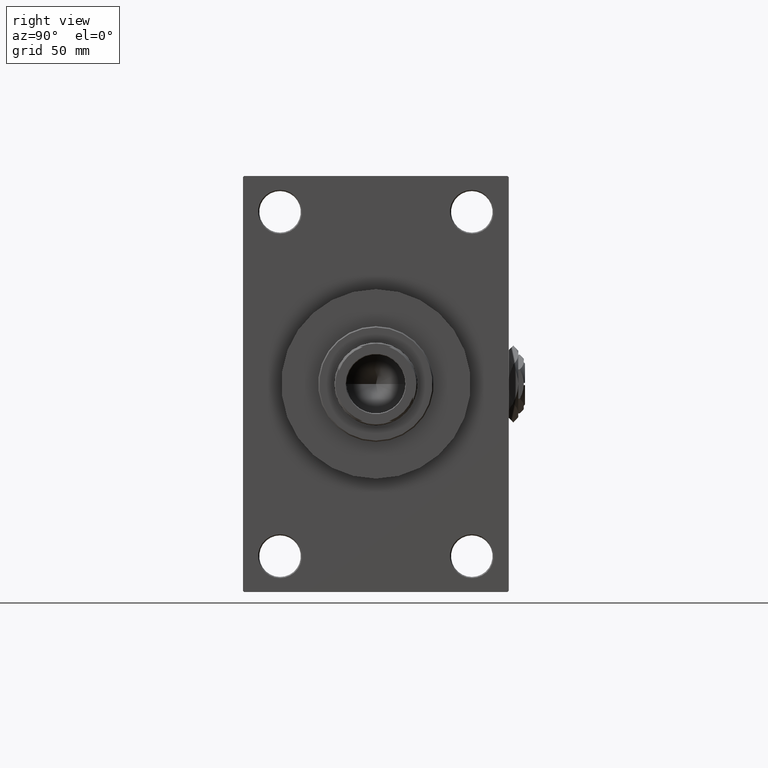
[diagram: clean part render]
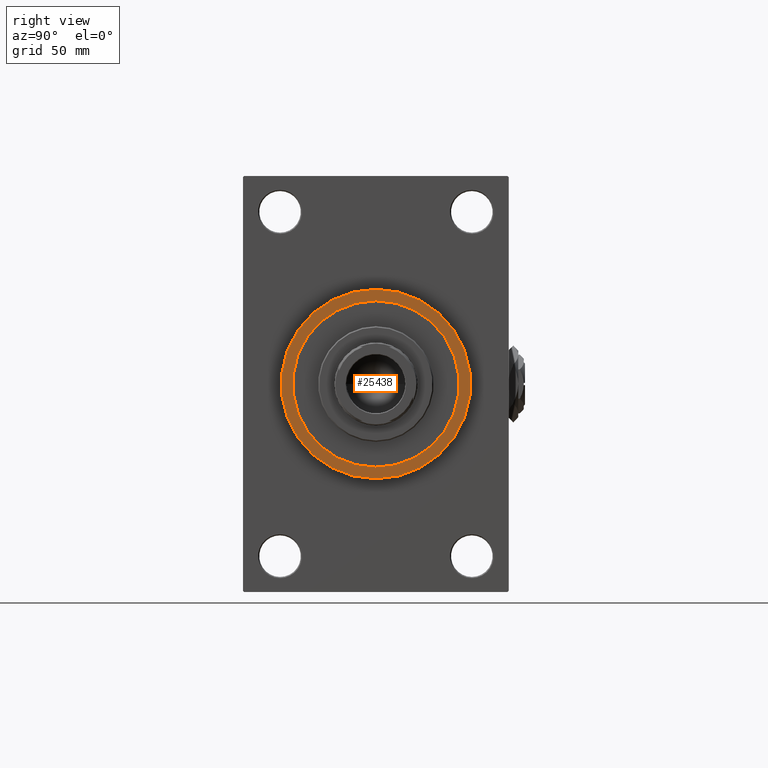
[diagram: same view with one face highlighted and labeled with its STEP entity id]
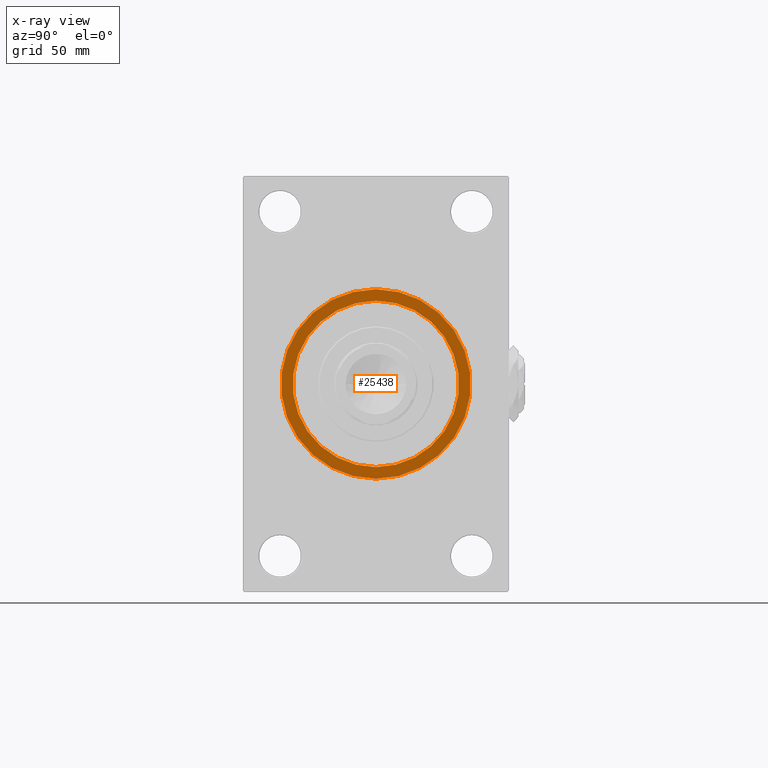
[diagram: x-ray of the same camera — body ghosted, the highlighted face saturated]
A machine part, right view. The second image highlights one B-rep face of the part: STEP entity #25438.
The next image is the same camera in x-ray: the body ghosted, the highlighted face saturated — about 0% of this face is hidden behind the body in this view.
In plain terms, the highlighted planar face has unit normal (1, 0, 0).
Its self-contained STEP definition (entity closure, byte-faithful):
#1403 = CARTESIAN_POINT ( 'NONE',  ( 179.0000000000000000, 0.000000000000000000, 0.000000000000000000 ) ) ;
#2047 = EDGE_CURVE ( 'NONE', #37551, #45901, #45883, .T. ) ;
#2571 = CARTESIAN_POINT ( 'NONE',  ( 179.0000000000000000, 0.000000000000000000, 0.000000000000000000 ) ) ;
#3582 = CIRCLE ( 'NONE', #5177, 36.00000000000000000 ) ;
#3705 = VERTEX_POINT ( 'NONE', #24641 ) ;
#3818 = AXIS2_PLACEMENT_3D ( 'NONE', #35480, #39464, #39716 ) ;
#3975 = EDGE_CURVE ( 'NONE', #28971, #3705, #4321, .T. ) ;
#4321 = CIRCLE ( 'NONE', #22678, 41.00000000000000000 ) ;
#4749 = ORIENTED_EDGE ( 'NONE', *, *, #3975, .T. ) ;
#5177 = AXIS2_PLACEMENT_3D ( 'NONE', #2571, #17310, #48078 ) ;
#13147 = DIRECTION ( 'NONE',  ( 1.000000000000000000, 0.000000000000000000, 0.000000000000000000 ) ) ;
#14232 = ORIENTED_EDGE ( 'NONE', *, *, #2047, .F. ) ;
#16654 = FACE_BOUND ( 'NONE', #30076, .T. ) ;
#16933 = EDGE_CURVE ( 'NONE', #3705, #28971, #49334, .T. ) ;
#17310 = DIRECTION ( 'NONE',  ( 1.000000000000000000, 0.000000000000000000, 0.000000000000000000 ) ) ;
#20193 = EDGE_CURVE ( 'NONE', #45901, #37551, #3582, .T. ) ;
#21259 = DIRECTION ( 'NONE',  ( 1.000000000000000000, 0.000000000000000000, 0.000000000000000000 ) ) ;
#22259 = CARTESIAN_POINT ( 'NONE',  ( 179.0000000000000000, 0.000000000000000000, 0.000000000000000000 ) ) ;
#22678 = AXIS2_PLACEMENT_3D ( 'NONE', #22259, #21259, #40256 ) ;
#23930 = FACE_OUTER_BOUND ( 'NONE', #49180, .T. ) ;
#24641 = CARTESIAN_POINT ( 'NONE',  ( 179.0000000000000000, 5.021051876504148963E-15, -41.00000000000000000 ) ) ;
#25438 = ADVANCED_FACE ( 'NONE', ( #16654, #23930 ), #39166, .T. ) ;
#28773 = CARTESIAN_POINT ( 'NONE',  ( 179.0000000000000000, 4.408728476930470856E-15, 36.00000000000000000 ) ) ;
#28971 = VERTEX_POINT ( 'NONE', #40016 ) ;
#30076 = EDGE_LOOP ( 'NONE', ( #14232, #48101 ) ) ;
#31895 = DIRECTION ( 'NONE',  ( 0.000000000000000000, 0.000000000000000000, -1.000000000000000000 ) ) ;
#33360 = CARTESIAN_POINT ( 'NONE',  ( 179.0000000000000000, 0.000000000000000000, 0.000000000000000000 ) ) ;
#35480 = CARTESIAN_POINT ( 'NONE',  ( 179.0000000000000000, 0.000000000000000000, 0.000000000000000000 ) ) ;
#37551 = VERTEX_POINT ( 'NONE', #39514 ) ;
#39166 = PLANE ( 'NONE',  #40902 ) ;
#39464 = DIRECTION ( 'NONE',  ( 1.000000000000000000, 0.000000000000000000, 0.000000000000000000 ) ) ;
#39514 = CARTESIAN_POINT ( 'NONE',  ( 179.0000000000000000, 0.000000000000000000, -36.00000000000000000 ) ) ;
#39716 = DIRECTION ( 'NONE',  ( 0.000000000000000000, 0.000000000000000000, -1.000000000000000000 ) ) ;
#40016 = CARTESIAN_POINT ( 'NONE',  ( 179.0000000000000000, 0.000000000000000000, 41.00000000000000000 ) ) ;
#40256 = DIRECTION ( 'NONE',  ( 0.000000000000000000, 0.000000000000000000, -1.000000000000000000 ) ) ;
#40610 = DIRECTION ( 'NONE',  ( 0.000000000000000000, 0.000000000000000000, -1.000000000000000000 ) ) ;
#40902 = AXIS2_PLACEMENT_3D ( 'NONE', #1403, #13147, #31895 ) ;
#44618 = DIRECTION ( 'NONE',  ( 1.000000000000000000, 0.000000000000000000, 0.000000000000000000 ) ) ;
#45883 = CIRCLE ( 'NONE', #48291, 36.00000000000000000 ) ;
#45901 = VERTEX_POINT ( 'NONE', #28773 ) ;
#47448 = ORIENTED_EDGE ( 'NONE', *, *, #16933, .T. ) ;
#48078 = DIRECTION ( 'NONE',  ( 0.000000000000000000, 0.000000000000000000, -1.000000000000000000 ) ) ;
#48101 = ORIENTED_EDGE ( 'NONE', *, *, #20193, .F. ) ;
#48291 = AXIS2_PLACEMENT_3D ( 'NONE', #33360, #44618, #40610 ) ;
#49180 = EDGE_LOOP ( 'NONE', ( #4749, #47448 ) ) ;
#49334 = CIRCLE ( 'NONE', #3818, 41.00000000000000000 ) ;